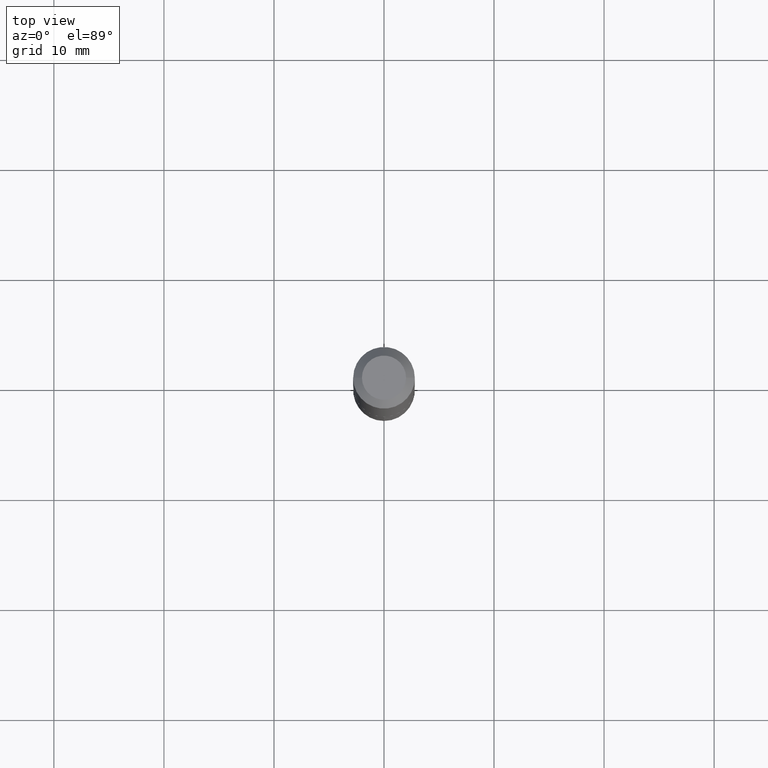
[diagram: clean part render]
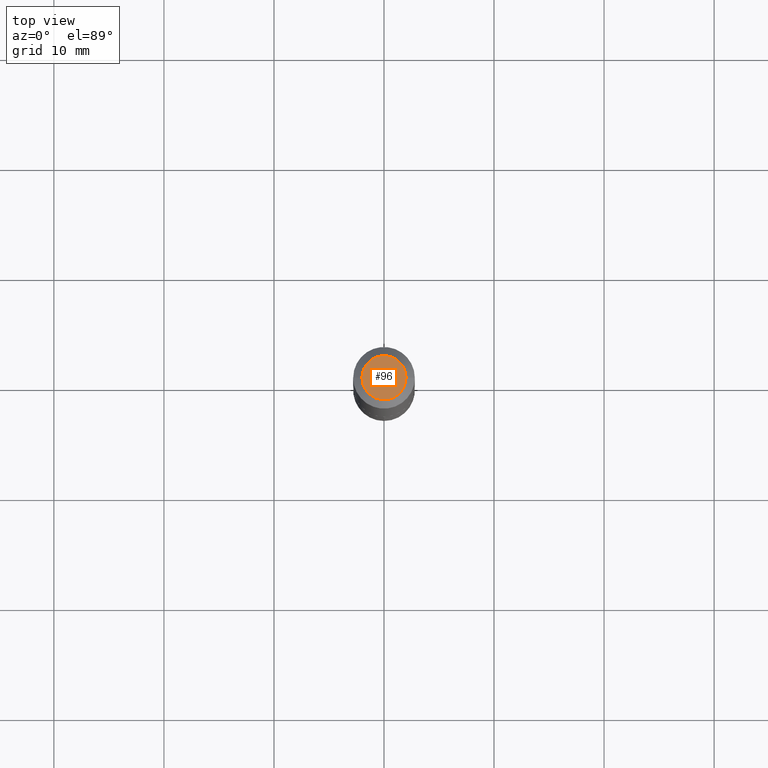
[diagram: same view with one face highlighted and labeled with its STEP entity id]
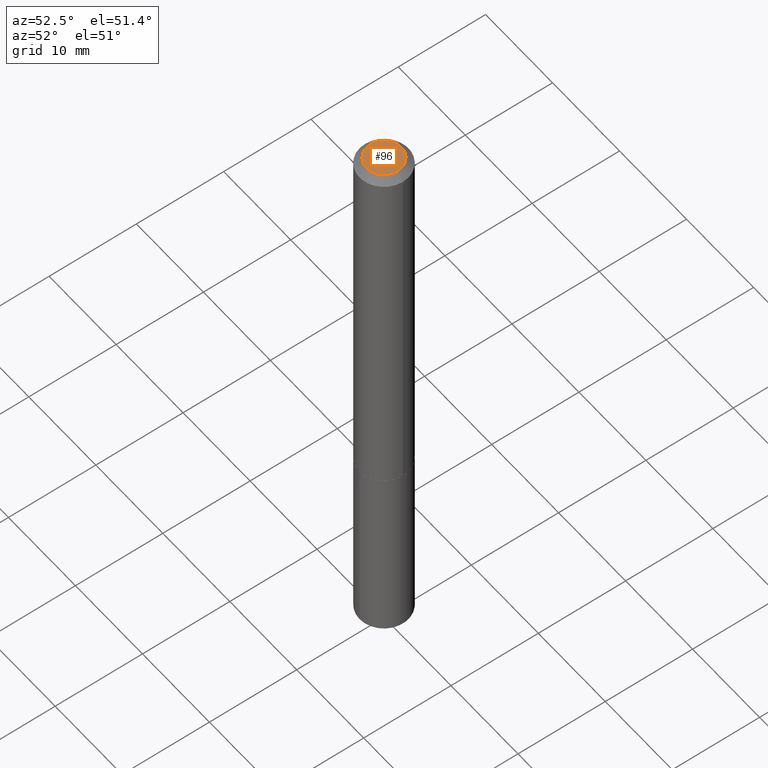
[diagram: same view with one face highlighted and labeled with its STEP entity id]
A machine part, top view. The second image highlights one B-rep face of the part: STEP entity #96.
A second angle (auxiliary view) of the same face is appended — the face is thin or edge-on in the first view.
In plain terms, the highlighted planar face has unit normal (0, -0, -1).
Its self-contained STEP definition (entity closure, byte-faithful):
#22 = DIRECTION ( 'NONE',  ( 1.000000000000000000, -6.982962677686266711E-15, 4.876184424155355806E-29 ) ) ;
#42 = DIRECTION ( 'NONE',  ( 2.438088387897960049E-29, -3.491481338843145188E-15, -1.000000000000000000 ) ) ;
#52 = EDGE_CURVE ( 'NONE', #176, #142, #334, .T. ) ;
#73 = CARTESIAN_POINT ( 'NONE',  ( -5.989671091818699506E-48, 8.551662891794013634E-34, 2.449293598294725547E-19 ) ) ;
#93 = DIRECTION ( 'NONE',  ( 1.000000000000000000, -6.982962677686266711E-15, 4.876184424155355806E-29 ) ) ;
#96 = ADVANCED_FACE ( 'NONE', ( #318 ), #155, .F. ) ;
#122 = DIRECTION ( 'NONE',  ( -1.000000000000000000, 6.982962677686265922E-15, -4.876176775795935793E-29 ) ) ;
#135 = AXIS2_PLACEMENT_3D ( 'NONE', #276, #42, #122 ) ;
#139 = CARTESIAN_POINT ( 'NONE',  ( -0.07900000000000000078, 6.062084474566384135E-16, 2.449293598254241055E-19 ) ) ;
#142 = VERTEX_POINT ( 'NONE', #139 ) ;
#152 = AXIS2_PLACEMENT_3D ( 'NONE', #73, #376, #93 ) ;
#153 = CIRCLE ( 'NONE', #320, 0.07900000000000000078 ) ;
#155 = PLANE ( 'NONE',  #135 ) ;
#175 = CARTESIAN_POINT ( 'NONE',  ( 0.07900000000000000078, -7.037290189585556716E-16, 2.449293598338615083E-19 ) ) ;
#176 = VERTEX_POINT ( 'NONE', #175 ) ;
#177 = CARTESIAN_POINT ( 'NONE',  ( -5.989671091818699506E-48, 8.551662891794013634E-34, 2.449293598294725547E-19 ) ) ;
#205 = DIRECTION ( 'NONE',  ( -2.445468806185136597E-29, 3.491481338843145583E-15, 1.000000000000000000 ) ) ;
#264 = EDGE_CURVE ( 'NONE', #142, #176, #153, .T. ) ;
#265 = ORIENTED_EDGE ( 'NONE', *, *, #264, .T. ) ;
#276 = CARTESIAN_POINT ( 'NONE',  ( -2.994835545909349753E-48, 4.275831445897006817E-34, 1.224646799147362773E-19 ) ) ;
#318 = FACE_OUTER_BOUND ( 'NONE', #370, .T. ) ;
#320 = AXIS2_PLACEMENT_3D ( 'NONE', #177, #205, #22 ) ;
#334 = CIRCLE ( 'NONE', #152, 0.07900000000000000078 ) ;
#370 = EDGE_LOOP ( 'NONE', ( #265, #390 ) ) ;
#376 = DIRECTION ( 'NONE',  ( -2.445468806185136597E-29, 3.491481338843145583E-15, 1.000000000000000000 ) ) ;
#390 = ORIENTED_EDGE ( 'NONE', *, *, #52, .T. ) ;